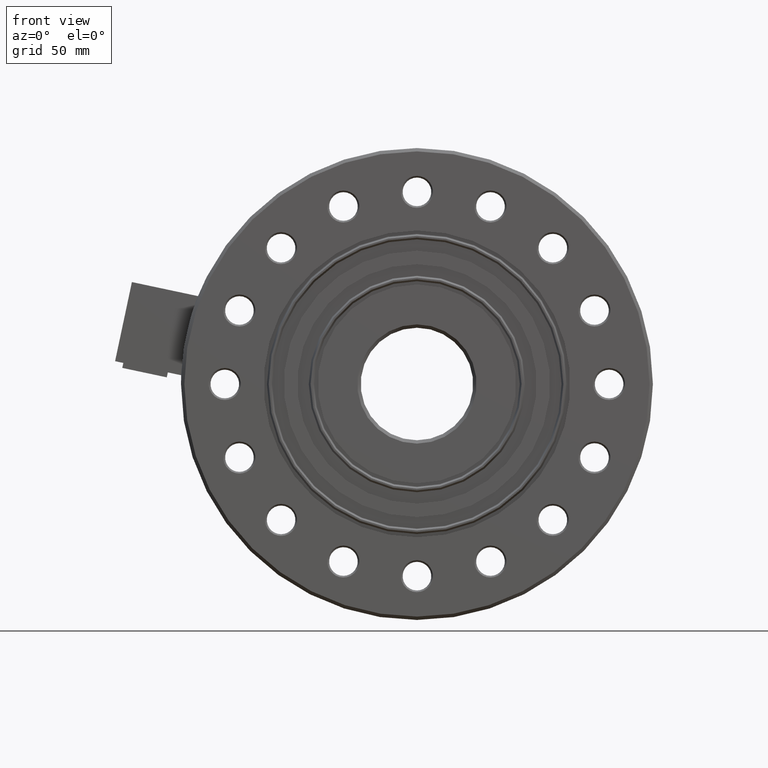
[diagram: clean part render]
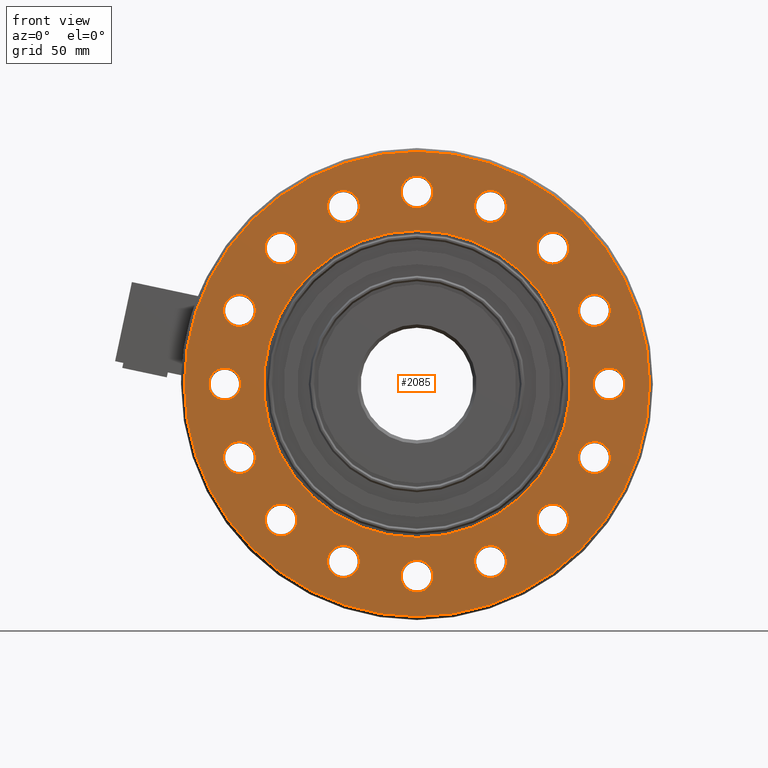
[diagram: same view with one face highlighted and labeled with its STEP entity id]
A machine part, front view. The second image highlights one B-rep face of the part: STEP entity #2085.
In plain terms, the highlighted planar face has unit normal (0, -1, 0).
Its self-contained STEP definition (entity closure, byte-faithful):
#24=PLANE('',#2414);
#71=FACE_BOUND('',#332,.T.);
#72=FACE_BOUND('',#333,.T.);
#73=FACE_BOUND('',#334,.T.);
#74=FACE_BOUND('',#335,.T.);
#75=FACE_BOUND('',#336,.T.);
#76=FACE_BOUND('',#337,.T.);
#77=FACE_BOUND('',#338,.T.);
#78=FACE_BOUND('',#339,.T.);
#79=FACE_BOUND('',#340,.T.);
#80=FACE_BOUND('',#341,.T.);
#81=FACE_BOUND('',#342,.T.);
#82=FACE_BOUND('',#343,.T.);
#83=FACE_BOUND('',#344,.T.);
#84=FACE_BOUND('',#345,.T.);
#85=FACE_BOUND('',#346,.T.);
#86=FACE_BOUND('',#347,.T.);
#87=FACE_BOUND('',#348,.T.);
#204=FACE_OUTER_BOUND('',#331,.T.);
#331=EDGE_LOOP('',(#1833,#1834));
#332=EDGE_LOOP('',(#1835,#1836));
#333=EDGE_LOOP('',(#1837,#1838));
#334=EDGE_LOOP('',(#1839,#1840));
#335=EDGE_LOOP('',(#1841,#1842));
#336=EDGE_LOOP('',(#1843,#1844));
#337=EDGE_LOOP('',(#1845,#1846));
#338=EDGE_LOOP('',(#1847,#1848));
#339=EDGE_LOOP('',(#1849,#1850));
#340=EDGE_LOOP('',(#1851,#1852));
#341=EDGE_LOOP('',(#1853,#1854));
#342=EDGE_LOOP('',(#1855,#1856));
#343=EDGE_LOOP('',(#1857,#1858));
#344=EDGE_LOOP('',(#1859,#1860));
#345=EDGE_LOOP('',(#1861,#1862));
#346=EDGE_LOOP('',(#1863,#1864));
#347=EDGE_LOOP('',(#1865,#1866));
#348=EDGE_LOOP('',(#1867,#1868));
#654=CIRCLE('',#2219,9.50000000000002);
#655=CIRCLE('',#2220,9.50000000000002);
#658=CIRCLE('',#2224,9.50000000000002);
#659=CIRCLE('',#2225,9.50000000000002);
#662=CIRCLE('',#2229,9.50000000000001);
#663=CIRCLE('',#2230,9.50000000000001);
#666=CIRCLE('',#2234,9.50000000000002);
#667=CIRCLE('',#2235,9.50000000000002);
#670=CIRCLE('',#2239,9.50000000000002);
#671=CIRCLE('',#2240,9.50000000000002);
#674=CIRCLE('',#2244,9.50000000000001);
#675=CIRCLE('',#2245,9.50000000000001);
#678=CIRCLE('',#2249,9.50000000000001);
#679=CIRCLE('',#2250,9.50000000000001);
#682=CIRCLE('',#2254,9.50000000000001);
#683=CIRCLE('',#2255,9.50000000000001);
#686=CIRCLE('',#2259,9.50000000000001);
#687=CIRCLE('',#2260,9.50000000000001);
#690=CIRCLE('',#2264,9.50000000000002);
#691=CIRCLE('',#2265,9.50000000000002);
#694=CIRCLE('',#2269,9.50000000000001);
#695=CIRCLE('',#2270,9.50000000000001);
#698=CIRCLE('',#2274,9.50000000000002);
#699=CIRCLE('',#2275,9.50000000000002);
#702=CIRCLE('',#2279,9.50000000000002);
#703=CIRCLE('',#2280,9.50000000000002);
#706=CIRCLE('',#2284,9.50000000000001);
#707=CIRCLE('',#2285,9.50000000000001);
#710=CIRCLE('',#2289,9.50000000000001);
#711=CIRCLE('',#2290,9.50000000000001);
#714=CIRCLE('',#2294,9.50000000000001);
#715=CIRCLE('',#2295,9.50000000000001);
#746=CIRCLE('',#2350,91.);
#747=CIRCLE('',#2351,91.);
#749=CIRCLE('',#2354,138.);
#750=CIRCLE('',#2355,138.);
#868=VERTEX_POINT('',#3364);
#869=VERTEX_POINT('',#3366);
#872=VERTEX_POINT('',#3374);
#873=VERTEX_POINT('',#3376);
#876=VERTEX_POINT('',#3384);
#877=VERTEX_POINT('',#3386);
#880=VERTEX_POINT('',#3394);
#881=VERTEX_POINT('',#3396);
#884=VERTEX_POINT('',#3404);
#885=VERTEX_POINT('',#3406);
#888=VERTEX_POINT('',#3414);
#889=VERTEX_POINT('',#3416);
#892=VERTEX_POINT('',#3424);
#893=VERTEX_POINT('',#3426);
#896=VERTEX_POINT('',#3434);
#897=VERTEX_POINT('',#3436);
#900=VERTEX_POINT('',#3444);
#901=VERTEX_POINT('',#3446);
#904=VERTEX_POINT('',#3454);
#905=VERTEX_POINT('',#3456);
#908=VERTEX_POINT('',#3464);
#909=VERTEX_POINT('',#3466);
#912=VERTEX_POINT('',#3474);
#913=VERTEX_POINT('',#3476);
#916=VERTEX_POINT('',#3484);
#917=VERTEX_POINT('',#3486);
#920=VERTEX_POINT('',#3494);
#921=VERTEX_POINT('',#3496);
#924=VERTEX_POINT('',#3504);
#925=VERTEX_POINT('',#3506);
#928=VERTEX_POINT('',#3514);
#929=VERTEX_POINT('',#3516);
#960=VERTEX_POINT('',#3626);
#961=VERTEX_POINT('',#3628);
#964=VERTEX_POINT('',#3635);
#965=VERTEX_POINT('',#3637);
#1121=EDGE_CURVE('',#869,#868,#654,.T.);
#1122=EDGE_CURVE('',#868,#869,#655,.T.);
#1126=EDGE_CURVE('',#873,#872,#658,.T.);
#1127=EDGE_CURVE('',#872,#873,#659,.T.);
#1131=EDGE_CURVE('',#877,#876,#662,.T.);
#1132=EDGE_CURVE('',#876,#877,#663,.T.);
#1136=EDGE_CURVE('',#881,#880,#666,.T.);
#1137=EDGE_CURVE('',#880,#881,#667,.T.);
#1141=EDGE_CURVE('',#885,#884,#670,.T.);
#1142=EDGE_CURVE('',#884,#885,#671,.T.);
#1146=EDGE_CURVE('',#889,#888,#674,.T.);
#1147=EDGE_CURVE('',#888,#889,#675,.T.);
#1151=EDGE_CURVE('',#893,#892,#678,.T.);
#1152=EDGE_CURVE('',#892,#893,#679,.T.);
#1156=EDGE_CURVE('',#897,#896,#682,.T.);
#1157=EDGE_CURVE('',#896,#897,#683,.T.);
#1161=EDGE_CURVE('',#901,#900,#686,.T.);
#1162=EDGE_CURVE('',#900,#901,#687,.T.);
#1166=EDGE_CURVE('',#905,#904,#690,.T.);
#1167=EDGE_CURVE('',#904,#905,#691,.T.);
#1171=EDGE_CURVE('',#909,#908,#694,.T.);
#1172=EDGE_CURVE('',#908,#909,#695,.T.);
#1176=EDGE_CURVE('',#913,#912,#698,.T.);
#1177=EDGE_CURVE('',#912,#913,#699,.T.);
#1181=EDGE_CURVE('',#917,#916,#702,.T.);
#1182=EDGE_CURVE('',#916,#917,#703,.T.);
#1186=EDGE_CURVE('',#921,#920,#706,.T.);
#1187=EDGE_CURVE('',#920,#921,#707,.T.);
#1191=EDGE_CURVE('',#925,#924,#710,.T.);
#1192=EDGE_CURVE('',#924,#925,#711,.T.);
#1196=EDGE_CURVE('',#929,#928,#714,.T.);
#1197=EDGE_CURVE('',#928,#929,#715,.T.);
#1252=EDGE_CURVE('',#960,#961,#746,.T.);
#1253=EDGE_CURVE('',#961,#960,#747,.T.);
#1256=EDGE_CURVE('',#965,#964,#749,.T.);
#1257=EDGE_CURVE('',#964,#965,#750,.T.);
#1833=ORIENTED_EDGE('',*,*,#1256,.T.);
#1834=ORIENTED_EDGE('',*,*,#1257,.T.);
#1835=ORIENTED_EDGE('',*,*,#1253,.F.);
#1836=ORIENTED_EDGE('',*,*,#1252,.F.);
#1837=ORIENTED_EDGE('',*,*,#1196,.T.);
#1838=ORIENTED_EDGE('',*,*,#1197,.T.);
#1839=ORIENTED_EDGE('',*,*,#1191,.T.);
#1840=ORIENTED_EDGE('',*,*,#1192,.T.);
#1841=ORIENTED_EDGE('',*,*,#1186,.T.);
#1842=ORIENTED_EDGE('',*,*,#1187,.T.);
#1843=ORIENTED_EDGE('',*,*,#1181,.T.);
#1844=ORIENTED_EDGE('',*,*,#1182,.T.);
#1845=ORIENTED_EDGE('',*,*,#1176,.T.);
#1846=ORIENTED_EDGE('',*,*,#1177,.T.);
#1847=ORIENTED_EDGE('',*,*,#1171,.T.);
#1848=ORIENTED_EDGE('',*,*,#1172,.T.);
#1849=ORIENTED_EDGE('',*,*,#1166,.T.);
#1850=ORIENTED_EDGE('',*,*,#1167,.T.);
#1851=ORIENTED_EDGE('',*,*,#1161,.T.);
#1852=ORIENTED_EDGE('',*,*,#1162,.T.);
#1853=ORIENTED_EDGE('',*,*,#1156,.T.);
#1854=ORIENTED_EDGE('',*,*,#1157,.T.);
#1855=ORIENTED_EDGE('',*,*,#1151,.T.);
#1856=ORIENTED_EDGE('',*,*,#1152,.T.);
#1857=ORIENTED_EDGE('',*,*,#1146,.T.);
#1858=ORIENTED_EDGE('',*,*,#1147,.T.);
#1859=ORIENTED_EDGE('',*,*,#1141,.T.);
#1860=ORIENTED_EDGE('',*,*,#1142,.T.);
#1861=ORIENTED_EDGE('',*,*,#1136,.T.);
#1862=ORIENTED_EDGE('',*,*,#1137,.T.);
#1863=ORIENTED_EDGE('',*,*,#1131,.T.);
#1864=ORIENTED_EDGE('',*,*,#1132,.T.);
#1865=ORIENTED_EDGE('',*,*,#1126,.T.);
#1866=ORIENTED_EDGE('',*,*,#1127,.T.);
#1867=ORIENTED_EDGE('',*,*,#1121,.T.);
#1868=ORIENTED_EDGE('',*,*,#1122,.T.);
#2085=ADVANCED_FACE('',(#204,#71,#72,#73,#74,#75,#76,#77,#78,#79,#80,#81,
#82,#83,#84,#85,#86,#87),#24,.T.);
#2219=AXIS2_PLACEMENT_3D('',#3367,#2656,#2657);
#2220=AXIS2_PLACEMENT_3D('',#3368,#2658,#2659);
#2224=AXIS2_PLACEMENT_3D('',#3377,#2667,#2668);
#2225=AXIS2_PLACEMENT_3D('',#3378,#2669,#2670);
#2229=AXIS2_PLACEMENT_3D('',#3387,#2678,#2679);
#2230=AXIS2_PLACEMENT_3D('',#3388,#2680,#2681);
#2234=AXIS2_PLACEMENT_3D('',#3397,#2689,#2690);
#2235=AXIS2_PLACEMENT_3D('',#3398,#2691,#2692);
#2239=AXIS2_PLACEMENT_3D('',#3407,#2700,#2701);
#2240=AXIS2_PLACEMENT_3D('',#3408,#2702,#2703);
#2244=AXIS2_PLACEMENT_3D('',#3417,#2711,#2712);
#2245=AXIS2_PLACEMENT_3D('',#3418,#2713,#2714);
#2249=AXIS2_PLACEMENT_3D('',#3427,#2722,#2723);
#2250=AXIS2_PLACEMENT_3D('',#3428,#2724,#2725);
#2254=AXIS2_PLACEMENT_3D('',#3437,#2733,#2734);
#2255=AXIS2_PLACEMENT_3D('',#3438,#2735,#2736);
#2259=AXIS2_PLACEMENT_3D('',#3447,#2744,#2745);
#2260=AXIS2_PLACEMENT_3D('',#3448,#2746,#2747);
#2264=AXIS2_PLACEMENT_3D('',#3457,#2755,#2756);
#2265=AXIS2_PLACEMENT_3D('',#3458,#2757,#2758);
#2269=AXIS2_PLACEMENT_3D('',#3467,#2766,#2767);
#2270=AXIS2_PLACEMENT_3D('',#3468,#2768,#2769);
#2274=AXIS2_PLACEMENT_3D('',#3477,#2777,#2778);
#2275=AXIS2_PLACEMENT_3D('',#3478,#2779,#2780);
#2279=AXIS2_PLACEMENT_3D('',#3487,#2788,#2789);
#2280=AXIS2_PLACEMENT_3D('',#3488,#2790,#2791);
#2284=AXIS2_PLACEMENT_3D('',#3497,#2799,#2800);
#2285=AXIS2_PLACEMENT_3D('',#3498,#2801,#2802);
#2289=AXIS2_PLACEMENT_3D('',#3507,#2810,#2811);
#2290=AXIS2_PLACEMENT_3D('',#3508,#2812,#2813);
#2294=AXIS2_PLACEMENT_3D('',#3517,#2821,#2822);
#2295=AXIS2_PLACEMENT_3D('',#3518,#2823,#2824);
#2350=AXIS2_PLACEMENT_3D('',#3629,#2957,#2958);
#2351=AXIS2_PLACEMENT_3D('',#3630,#2959,#2960);
#2354=AXIS2_PLACEMENT_3D('',#3638,#2966,#2967);
#2355=AXIS2_PLACEMENT_3D('',#3639,#2968,#2969);
#2414=AXIS2_PLACEMENT_3D('',#3750,#3098,#3099);
#2656=DIRECTION('center_axis',(0.,1.,0.));
#2657=DIRECTION('ref_axis',(0.,0.,-1.));
#2658=DIRECTION('center_axis',(0.,1.,0.));
#2659=DIRECTION('ref_axis',(0.,0.,-1.));
#2667=DIRECTION('center_axis',(0.,1.,0.));
#2668=DIRECTION('ref_axis',(0.,0.,-1.));
#2669=DIRECTION('center_axis',(0.,1.,0.));
#2670=DIRECTION('ref_axis',(0.,0.,-1.));
#2678=DIRECTION('center_axis',(0.,1.,0.));
#2679=DIRECTION('ref_axis',(0.,0.,-1.));
#2680=DIRECTION('center_axis',(0.,1.,0.));
#2681=DIRECTION('ref_axis',(0.,0.,-1.));
#2689=DIRECTION('center_axis',(0.,1.,0.));
#2690=DIRECTION('ref_axis',(0.,0.,-1.));
#2691=DIRECTION('center_axis',(0.,1.,0.));
#2692=DIRECTION('ref_axis',(0.,0.,-1.));
#2700=DIRECTION('center_axis',(0.,1.,0.));
#2701=DIRECTION('ref_axis',(0.,0.,-1.));
#2702=DIRECTION('center_axis',(0.,1.,0.));
#2703=DIRECTION('ref_axis',(0.,0.,-1.));
#2711=DIRECTION('center_axis',(0.,1.,0.));
#2712=DIRECTION('ref_axis',(0.,0.,-1.));
#2713=DIRECTION('center_axis',(0.,1.,0.));
#2714=DIRECTION('ref_axis',(0.,0.,-1.));
#2722=DIRECTION('center_axis',(0.,1.,0.));
#2723=DIRECTION('ref_axis',(0.,0.,-1.));
#2724=DIRECTION('center_axis',(0.,1.,0.));
#2725=DIRECTION('ref_axis',(0.,0.,-1.));
#2733=DIRECTION('center_axis',(0.,1.,0.));
#2734=DIRECTION('ref_axis',(0.,0.,-1.));
#2735=DIRECTION('center_axis',(0.,1.,0.));
#2736=DIRECTION('ref_axis',(0.,0.,-1.));
#2744=DIRECTION('center_axis',(0.,1.,0.));
#2745=DIRECTION('ref_axis',(0.,0.,-1.));
#2746=DIRECTION('center_axis',(0.,1.,0.));
#2747=DIRECTION('ref_axis',(0.,0.,-1.));
#2755=DIRECTION('center_axis',(0.,1.,0.));
#2756=DIRECTION('ref_axis',(0.,0.,-1.));
#2757=DIRECTION('center_axis',(0.,1.,0.));
#2758=DIRECTION('ref_axis',(0.,0.,-1.));
#2766=DIRECTION('center_axis',(0.,1.,0.));
#2767=DIRECTION('ref_axis',(0.,0.,-1.));
#2768=DIRECTION('center_axis',(0.,1.,0.));
#2769=DIRECTION('ref_axis',(0.,0.,-1.));
#2777=DIRECTION('center_axis',(0.,1.,0.));
#2778=DIRECTION('ref_axis',(0.,0.,-1.));
#2779=DIRECTION('center_axis',(0.,1.,0.));
#2780=DIRECTION('ref_axis',(0.,0.,-1.));
#2788=DIRECTION('center_axis',(0.,1.,0.));
#2789=DIRECTION('ref_axis',(0.,0.,-1.));
#2790=DIRECTION('center_axis',(0.,1.,0.));
#2791=DIRECTION('ref_axis',(0.,0.,-1.));
#2799=DIRECTION('center_axis',(0.,1.,0.));
#2800=DIRECTION('ref_axis',(0.,0.,-1.));
#2801=DIRECTION('center_axis',(0.,1.,0.));
#2802=DIRECTION('ref_axis',(0.,0.,-1.));
#2810=DIRECTION('center_axis',(0.,1.,0.));
#2811=DIRECTION('ref_axis',(0.,0.,-1.));
#2812=DIRECTION('center_axis',(0.,1.,0.));
#2813=DIRECTION('ref_axis',(0.,0.,-1.));
#2821=DIRECTION('center_axis',(0.,1.,0.));
#2822=DIRECTION('ref_axis',(0.,0.,-1.));
#2823=DIRECTION('center_axis',(0.,1.,0.));
#2824=DIRECTION('ref_axis',(0.,0.,-1.));
#2957=DIRECTION('center_axis',(0.,-1.,0.));
#2958=DIRECTION('ref_axis',(0.,0.,-1.));
#2959=DIRECTION('center_axis',(0.,-1.,0.));
#2960=DIRECTION('ref_axis',(0.,0.,-1.));
#2966=DIRECTION('center_axis',(0.,-1.,0.));
#2967=DIRECTION('ref_axis',(0.,0.,-1.));
#2968=DIRECTION('center_axis',(0.,-1.,0.));
#2969=DIRECTION('ref_axis',(0.,0.,-1.));
#3098=DIRECTION('center_axis',(0.,-1.,0.));
#3099=DIRECTION('ref_axis',(0.,0.,-1.));
#3364=CARTESIAN_POINT('',(80.6101730552665,-21.,90.1101730552664));
#3366=CARTESIAN_POINT('',(80.6101730552665,-21.,71.1101730552664));
#3367=CARTESIAN_POINT('Origin',(80.6101730552665,-21.,80.6101730552664));
#3368=CARTESIAN_POINT('Origin',(80.6101730552665,-21.,80.6101730552664));
#3374=CARTESIAN_POINT('',(105.322266706287,-21.,53.1259112896203));
#3376=CARTESIAN_POINT('',(105.322266706287,-21.,34.1259112896203));
#3377=CARTESIAN_POINT('Origin',(105.322266706287,-21.,43.6259112896203));
#3378=CARTESIAN_POINT('Origin',(105.322266706287,-21.,43.6259112896203));
#3384=CARTESIAN_POINT('',(114.,-21.,9.49999999999999));
#3386=CARTESIAN_POINT('',(114.,-21.,-9.50000000000003));
#3387=CARTESIAN_POINT('Origin',(114.,-21.,-2.09414602654199E-14));
#3388=CARTESIAN_POINT('Origin',(114.,-21.,-2.09414602654199E-14));
#3394=CARTESIAN_POINT('',(105.322266706287,-21.,-34.1259112896203));
#3396=CARTESIAN_POINT('',(105.322266706287,-21.,-53.1259112896203));
#3397=CARTESIAN_POINT('Origin',(105.322266706287,-21.,-43.6259112896203));
#3398=CARTESIAN_POINT('Origin',(105.322266706287,-21.,-43.6259112896203));
#3404=CARTESIAN_POINT('',(80.6101730552664,-21.,-71.1101730552664));
#3406=CARTESIAN_POINT('',(80.6101730552664,-21.,-90.1101730552665));
#3407=CARTESIAN_POINT('Origin',(80.6101730552664,-21.,-80.6101730552665));
#3408=CARTESIAN_POINT('Origin',(80.6101730552664,-21.,-80.6101730552665));
#3414=CARTESIAN_POINT('',(43.6259112896202,-21.,-95.8222667062867));
#3416=CARTESIAN_POINT('',(43.6259112896202,-21.,-114.822266706287));
#3417=CARTESIAN_POINT('Origin',(43.6259112896202,-21.,-105.322266706287));
#3418=CARTESIAN_POINT('Origin',(43.6259112896202,-21.,-105.322266706287));
#3424=CARTESIAN_POINT('',(-1.51243879694699E-14,-21.,-104.5));
#3426=CARTESIAN_POINT('',(-1.39609735102799E-14,-21.,-123.5));
#3427=CARTESIAN_POINT('Origin',(-1.39609735102799E-14,-21.,-114.));
#3428=CARTESIAN_POINT('Origin',(-1.39609735102799E-14,-21.,-114.));
#3434=CARTESIAN_POINT('',(-43.6259112896202,-21.,-95.8222667062867));
#3436=CARTESIAN_POINT('',(-43.6259112896202,-21.,-114.822266706287));
#3437=CARTESIAN_POINT('Origin',(-43.6259112896202,-21.,-105.322266706287));
#3438=CARTESIAN_POINT('Origin',(-43.6259112896202,-21.,-105.322266706287));
#3444=CARTESIAN_POINT('',(-80.6101730552664,-21.,-71.1101730552664));
#3446=CARTESIAN_POINT('',(-80.6101730552664,-21.,-90.1101730552664));
#3447=CARTESIAN_POINT('Origin',(-80.6101730552664,-21.,-80.6101730552664));
#3448=CARTESIAN_POINT('Origin',(-80.6101730552664,-21.,-80.6101730552664));
#3454=CARTESIAN_POINT('',(-105.322266706287,-21.,-34.1259112896202));
#3456=CARTESIAN_POINT('',(-105.322266706287,-21.,-53.1259112896203));
#3457=CARTESIAN_POINT('Origin',(-105.322266706287,-21.,-43.6259112896202));
#3458=CARTESIAN_POINT('Origin',(-105.322266706287,-21.,-43.6259112896202));
#3464=CARTESIAN_POINT('',(-114.,-21.,9.50000000000001));
#3466=CARTESIAN_POINT('',(-114.,-21.,-9.5));
#3467=CARTESIAN_POINT('Origin',(-114.,-21.,6.98048675513996E-15));
#3468=CARTESIAN_POINT('Origin',(-114.,-21.,6.98048675513996E-15));
#3474=CARTESIAN_POINT('',(-105.322266706287,-21.,53.1259112896203));
#3476=CARTESIAN_POINT('',(-105.322266706287,-21.,34.1259112896202));
#3477=CARTESIAN_POINT('Origin',(-105.322266706287,-21.,43.6259112896202));
#3478=CARTESIAN_POINT('Origin',(-105.322266706287,-21.,43.6259112896202));
#3484=CARTESIAN_POINT('',(-80.6101730552664,-21.,90.1101730552665));
#3486=CARTESIAN_POINT('',(-80.6101730552664,-21.,71.1101730552664));
#3487=CARTESIAN_POINT('Origin',(-80.6101730552664,-21.,80.6101730552664));
#3488=CARTESIAN_POINT('Origin',(-80.6101730552664,-21.,80.6101730552664));
#3494=CARTESIAN_POINT('',(-43.6259112896202,-21.,114.822266706287));
#3496=CARTESIAN_POINT('',(-43.6259112896202,-21.,95.8222667062867));
#3497=CARTESIAN_POINT('Origin',(-43.6259112896202,-21.,105.322266706287));
#3498=CARTESIAN_POINT('Origin',(-43.6259112896202,-21.,105.322266706287));
#3504=CARTESIAN_POINT('',(-1.16341445918999E-15,-21.,123.5));
#3506=CARTESIAN_POINT('',(0.,-21.,104.5));
#3507=CARTESIAN_POINT('Origin',(0.,-21.,114.));
#3508=CARTESIAN_POINT('Origin',(0.,-21.,114.));
#3514=CARTESIAN_POINT('',(43.6259112896203,-21.,114.822266706287));
#3516=CARTESIAN_POINT('',(43.6259112896203,-21.,95.8222667062867));
#3517=CARTESIAN_POINT('Origin',(43.6259112896203,-21.,105.322266706287));
#3518=CARTESIAN_POINT('Origin',(43.6259112896203,-21.,105.322266706287));
#3626=CARTESIAN_POINT('',(-2.70340780911778E-14,-21.,91.));
#3628=CARTESIAN_POINT('',(-1.58897922189369E-14,-21.,-91.));
#3629=CARTESIAN_POINT('Origin',(-1.58897922189369E-14,-21.,0.));
#3630=CARTESIAN_POINT('Origin',(-1.58897922189369E-14,-21.,0.));
#3635=CARTESIAN_POINT('',(-3.27899180471704E-14,-21.,-138.));
#3637=CARTESIAN_POINT('',(-1.58897922189369E-14,-21.,138.));
#3638=CARTESIAN_POINT('Origin',(-1.58897922189369E-14,-21.,0.));
#3639=CARTESIAN_POINT('Origin',(-1.58897922189369E-14,-21.,0.));
#3750=CARTESIAN_POINT('Origin',(91.,-21.,0.));